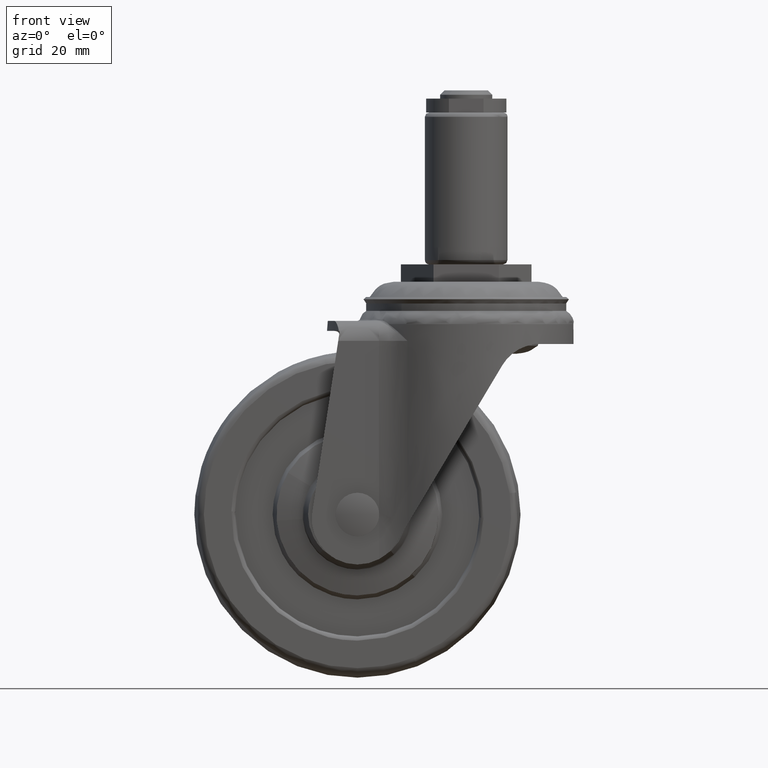
[diagram: clean part render]
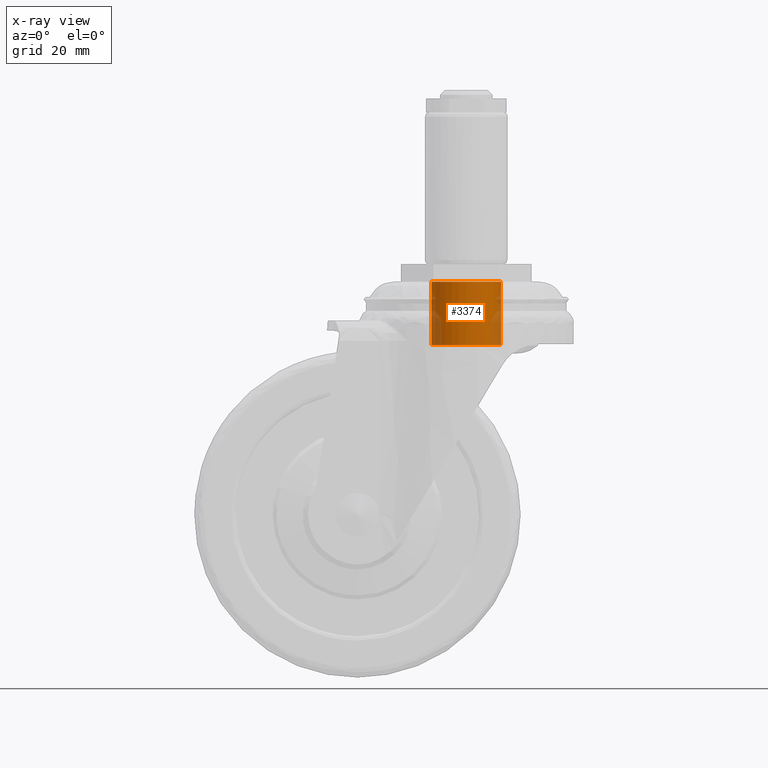
[diagram: x-ray — body ghosted, one internal face saturated and labeled with its STEP entity id]
A machine part, front view, then the same camera in x-ray: the body is ghosted and one INTERNAL B-rep face — a face not visible from any outside direction — is saturated and labeled: STEP entity #3374.
In plain terms, the highlighted face is a freeform B-spline surface patch.
Its self-contained STEP definition (entity closure, byte-faithful):
#3221=CARTESIAN_POINT('',(5.165936307056203,6.108445143523718,-3.636111497701160));
#3222=CARTESIAN_POINT('',(5.340757382698318,5.960598265852118,-3.636111497701160));
#3223=CARTESIAN_POINT('',(5.506836605550030,5.802994968098299,-3.636111497701160));
#3224=CARTESIAN_POINT('',(11.309831573648330,0.296158362548269,-3.636111497701160));
#3225=CARTESIAN_POINT('',(5.802994968098299,-5.506836605550030,-3.636111497701160));
#3226=CARTESIAN_POINT('',(0.296158362548269,-11.309831573648330,-3.636111497701160));
#3227=CARTESIAN_POINT('',(-5.506836605550030,-5.802994968098299,-3.636111497701160));
#3228=CARTESIAN_POINT('',(-11.309831573648330,-0.296158362548269,-3.636111497701160));
#3229=CARTESIAN_POINT('',(-5.802994968098299,5.506836605550030,-3.636111497701160));
#3230=CARTESIAN_POINT('',(5.165936307056203,6.108445143523718,-18.928525806809915));
#3231=CARTESIAN_POINT('',(5.340757382698318,5.960598265852118,-18.928525806809926));
#3232=CARTESIAN_POINT('',(5.506836605550030,5.802994968098299,-18.928525806809919));
#3233=CARTESIAN_POINT('',(11.309831573648330,0.296158362548269,-18.928525806809919));
#3234=CARTESIAN_POINT('',(5.802994968098299,-5.506836605550030,-18.928525806809919));
#3235=CARTESIAN_POINT('',(0.296158362548269,-11.309831573648330,-18.928525806809919));
#3236=CARTESIAN_POINT('',(-5.506836605550030,-5.802994968098299,-18.928525806809919));
#3237=CARTESIAN_POINT('',(-11.309831573648330,-0.296158362548269,-18.928525806809919));
#3238=CARTESIAN_POINT('',(-5.802994968098299,5.506836605550030,-18.928525806809919));
#3246=(BOUNDED_SURFACE()B_SPLINE_SURFACE(2,1,((#3221,#3230),(#3222,#3231),(#3223,#3232),(#3224,#3233),(#3225,#3234),(#3226,#3235),(#3227,#3236),(#3228,#3237),(#3229,#3238)),.UNSPECIFIED.,.F.,.F.,.U.)B_SPLINE_SURFACE_WITH_KNOTS((3,2,2,2,3),(2,2),(0.0,0.530193359837562,13.785027355776601,27.039861351715640,40.294695347654667),(0.0,15.292414309108761),.UNSPECIFIED.)GEOMETRIC_REPRESENTATION_ITEM()RATIONAL_B_SPLINE_SURFACE(((0.977505800795127,0.977505800795127),(0.988284271247462,0.988284271247462),(1.0,1.0),(0.707106781186548,0.707106781186548),(1.0,1.0),(0.707106781186548,0.707106781186548),(1.0,1.0),(0.707106781186548,0.707106781186548),(1.0,1.0)))REPRESENTATION_ITEM('')SURFACE());
#3247=CARTESIAN_POINT('',(5.165936575284565,6.108445360723499,-18.555540091954299));
#3248=VERTEX_POINT('',#3247);
#3249=CARTESIAN_POINT('',(8.0,0.0,-18.555540091953599));
#3250=VERTEX_POINT('',#3249);
#3251=CARTESIAN_POINT('',(5.165936575284565,6.108445360723499,-18.555540091954299));
#3252=CARTESIAN_POINT('',(5.802046199382416,5.571117626189934,-18.555540091954200));
#3253=CARTESIAN_POINT('',(6.592075360672836,4.655799974751827,-18.555540091954189));
#3254=CARTESIAN_POINT('',(7.392632616958438,3.150027760524228,-18.555540091953961));
#3255=CARTESIAN_POINT('',(7.869865701895519,1.737560191491981,-18.555540091953748));
#3256=CARTESIAN_POINT('',(8.000125425795652,0.615413903055428,-18.555540091953699));
#3257=CARTESIAN_POINT('',(8.0,0.0,-18.555540091953599));
#3258=B_SPLINE_CURVE_WITH_KNOTS('',3,(#3251,#3252,#3253,#3254,#3255,#3256,#3257),.UNSPECIFIED.,.F.,.U.,(4,1,1,1,4),(0.000000038262470,2.497835508302702,3.583817222934159,5.104247905861117,6.950466429276188),.UNSPECIFIED.);
#3259=EDGE_CURVE('',#3248,#3250,#3258,.T.);
#3260=ORIENTED_EDGE('',*,*,#3259,.F.);
#3261=CARTESIAN_POINT('',(5.165936574656104,6.108445361254947,-4.0));
#3262=VERTEX_POINT('',#3261);
#3263=CARTESIAN_POINT('',(5.165936574656104,6.108445361254947,-4.0));
#3264=CARTESIAN_POINT('',(5.165936575284565,6.108445360723499,-18.555540091954299));
#3265=QUASI_UNIFORM_CURVE('',1,(#3263,#3264),.UNSPECIFIED.,.F.,.U.);
#3266=EDGE_CURVE('',#3262,#3248,#3265,.T.);
#3267=ORIENTED_EDGE('',*,*,#3266,.F.);
#3268=CARTESIAN_POINT('',(8.0,0.0,-4.0));
#3269=VERTEX_POINT('',#3268);
#3270=CARTESIAN_POINT('',(5.165936574656104,6.108445361254947,-4.0));
#3271=CARTESIAN_POINT('',(5.802030012027547,5.571114248674903,-3.999999999999979));
#3272=CARTESIAN_POINT('',(6.639997205981780,4.600338168210986,-4.000000000000038));
#3273=CARTESIAN_POINT('',(7.354288404865456,3.211463892039963,-3.999999999999982));
#3274=CARTESIAN_POINT('',(7.849216723535178,1.809874486210506,-4.000000000000018));
#3275=CARTESIAN_POINT('',(8.000316856798809,0.760247739238669,-3.999999999999972));
#3276=CARTESIAN_POINT('',(8.0,0.0,-4.0));
#3277=B_SPLINE_CURVE_WITH_KNOTS('',3,(#3270,#3271,#3272,#3273,#3274,#3275,#3276),.UNSPECIFIED.,.F.,.U.,(4,1,1,1,4),(0.000000038263295,2.497835508598858,3.801012100234849,4.669842726386582,6.950466430099228),.UNSPECIFIED.);
#3278=EDGE_CURVE('',#3262,#3269,#3277,.T.);
#3279=ORIENTED_EDGE('',*,*,#3278,.T.);
#3280=CARTESIAN_POINT('',(-0.000001375290993,-7.999999999999882,-4.0));
#3281=VERTEX_POINT('',#3280);
#3282=CARTESIAN_POINT('',(8.0,0.0,-4.0));
#3283=CARTESIAN_POINT('',(8.000243040549018,-0.719970237695694,-3.999999999999995));
#3284=CARTESIAN_POINT('',(7.826511734698189,-1.996120369310360,-4.000000000000009));
#3285=CARTESIAN_POINT('',(7.176860204249508,-3.649890680406295,-4.0));
#3286=CARTESIAN_POINT('',(6.289249935120520,-5.032733548414628,-3.999999999999991));
#3287=CARTESIAN_POINT('',(5.070646576808676,-6.281796616784929,-3.999999999999993));
#3288=CARTESIAN_POINT('',(3.649941358496569,-7.181335073537362,-4.000000000000048));
#3289=CARTESIAN_POINT('',(1.930627721401632,-7.832466139986162,-3.999999999999910));
#3290=CARTESIAN_POINT('',(0.752705149264657,-8.000278103166316,-4.000000000000039));
#3291=CARTESIAN_POINT('',(-0.000001375290993,-7.999999999999882,-4.0));
#3292=B_SPLINE_CURVE_WITH_KNOTS('',3,(#3282,#3283,#3284,#3285,#3286,#3287,#3288,#3289,#3290,#3291),.UNSPECIFIED.,.F.,.U.,(4,1,1,1,1,1,1,4),(0.000000129359908,2.159858494545006,3.828853022309669,5.301508742393242,7.068624005722660,9.032129128956232,10.308418452987549,12.566450238148720),.UNSPECIFIED.);
#3293=EDGE_CURVE('',#3269,#3281,#3292,.T.);
#3294=ORIENTED_EDGE('',*,*,#3293,.T.);
#3295=CARTESIAN_POINT('',(-8.0,0.0,-4.0));
#3296=VERTEX_POINT('',#3295);
#3297=CARTESIAN_POINT('',(-0.000001375290993,-7.999999999999882,-4.0));
#3298=CARTESIAN_POINT('',(-0.850906731180633,-8.000409170389299,-3.999999999999992));
#3299=CARTESIAN_POINT('',(-2.126890643723554,-7.794500383438291,-4.000000000000022));
#3300=CARTESIAN_POINT('',(-3.578949956956149,-7.182235016914313,-3.999999999999988));
#3301=CARTESIAN_POINT('',(-4.566480313506507,-6.598580338835390,-4.000000000000028));
#3302=CARTESIAN_POINT('',(-5.648347814547758,-5.743734506132818,-3.999999999999985));
#3303=CARTESIAN_POINT('',(-6.582394908722734,-4.633700567896283,-4.000000000000002));
#3304=CARTESIAN_POINT('',(-7.285859418018123,-3.373564249296105,-4.000000000000005));
#3305=CARTESIAN_POINT('',(-7.832492876697360,-1.930637136039002,-3.999999999999996));
#3306=CARTESIAN_POINT('',(-8.000266495692173,-0.752705473147793,-4.000000000000003));
#3307=CARTESIAN_POINT('',(-8.0,0.0,-4.0));
#3308=B_SPLINE_CURVE_WITH_KNOTS('',3,(#3297,#3298,#3299,#3300,#3301,#3302,#3303,#3304,#3305,#3306,#3307),.UNSPECIFIED.,.F.,.U.,(4,1,1,1,1,1,1,1,4),(0.000000129838014,2.552557955126160,3.828852550414030,4.712423965979518,5.988735745930430,7.952180313416029,9.032128014486625,10.308417181866609,12.566448687865520),.UNSPECIFIED.);
#3309=EDGE_CURVE('',#3281,#3296,#3308,.T.);
#3310=ORIENTED_EDGE('',*,*,#3309,.T.);
#3311=CARTESIAN_POINT('',(-5.802994646137058,5.506836446026000,-4.0));
#3312=VERTEX_POINT('',#3311);
#3313=CARTESIAN_POINT('',(-8.0,0.0,-4.0));
#3314=CARTESIAN_POINT('',(-8.000061924439986,0.506150372846937,-4.000000000000006));
#3315=CARTESIAN_POINT('',(-7.906598409209151,1.486781149091759,-3.999999999999990));
#3316=CARTESIAN_POINT('',(-7.461035658538473,3.044058269051161,-4.000000000000011));
#3317=CARTESIAN_POINT('',(-6.746237837034503,4.395830901333309,-3.999999999999990));
#3318=CARTESIAN_POINT('',(-6.086075329337763,5.208537863711525,-4.000000000000011));
#3319=CARTESIAN_POINT('',(-5.802994646137058,5.506836446026000,-4.0));
#3320=B_SPLINE_CURVE_WITH_KNOTS('',3,(#3313,#3314,#3315,#3316,#3317,#3318,#3319),.UNSPECIFIED.,.F.,.U.,(4,1,1,1,4),(0.000000031785983,1.518445369961434,2.942007438684915,4.840048794823058,6.073781384445676),.UNSPECIFIED.);
#3321=EDGE_CURVE('',#3296,#3312,#3320,.T.);
#3322=ORIENTED_EDGE('',*,*,#3321,.T.);
#3323=CARTESIAN_POINT('',(-5.802994645237343,5.506836446974052,-18.555540091951659));
#3324=VERTEX_POINT('',#3323);
#3325=CARTESIAN_POINT('',(-5.802994646137058,5.506836446026000,-4.0));
#3326=CARTESIAN_POINT('',(-5.802994645237343,5.506836446974052,-18.555540091951659));
#3327=QUASI_UNIFORM_CURVE('',1,(#3325,#3326),.UNSPECIFIED.,.F.,.U.);
#3328=EDGE_CURVE('',#3312,#3324,#3327,.T.);
#3329=ORIENTED_EDGE('',*,*,#3328,.T.);
#3330=CARTESIAN_POINT('',(-8.0,0.0,-18.555540091953599));
#3331=VERTEX_POINT('',#3330);
#3332=CARTESIAN_POINT('',(-8.0,0.0,-18.555540091953599));
#3333=CARTESIAN_POINT('',(-8.000122498528867,0.601062465263289,-18.555540091953361));
#3334=CARTESIAN_POINT('',(-7.888926428751203,1.581662654171772,-18.555540091953102));
#3335=CARTESIAN_POINT('',(-7.471847708488809,2.946508274787784,-18.555540091952551));
#3336=CARTESIAN_POINT('',(-6.849526446159084,4.232269939264314,-18.555540091951961));
#3337=CARTESIAN_POINT('',(-6.216826013702836,5.070927852092925,-18.555540091952050));
#3338=CARTESIAN_POINT('',(-5.802994645237343,5.506836446974052,-18.555540091951659));
#3339=B_SPLINE_CURVE_WITH_KNOTS('',3,(#3332,#3333,#3334,#3335,#3336,#3337,#3338),.UNSPECIFIED.,.F.,.U.,(4,1,1,1,4),(0.000000031786527,1.803158118881911,2.942007439318360,4.270623298678133,6.073781385752690),.UNSPECIFIED.);
#3340=EDGE_CURVE('',#3331,#3324,#3339,.T.);
#3341=ORIENTED_EDGE('',*,*,#3340,.F.);
#3342=CARTESIAN_POINT('',(-0.000001375290855,-7.999999999999882,-18.555540091953599));
#3343=VERTEX_POINT('',#3342);
#3344=CARTESIAN_POINT('',(-0.000001375290855,-7.999999999999882,-18.555540091953599));
#3345=CARTESIAN_POINT('',(-0.490875381539733,-8.000055180793936,-18.555540091953670));
#3346=CARTESIAN_POINT('',(-1.407141718532558,-7.915373343550143,-18.555540091953539));
#3347=CARTESIAN_POINT('',(-2.928489410787933,-7.504569315492099,-18.555540091953610));
#3348=CARTESIAN_POINT('',(-4.342110544791528,-6.792961798271974,-18.555540091953642));
#3349=CARTESIAN_POINT('',(-5.746402692615592,-5.654870817414990,-18.555540091953599));
#3350=CARTESIAN_POINT('',(-6.817755061085316,-4.316282128824993,-18.555540091953549));
#3351=CARTESIAN_POINT('',(-7.530176462815267,-2.833360872670651,-18.555540091953588));
#3352=CARTESIAN_POINT('',(-7.915383392621604,-1.407144081473919,-18.555540091953599));
#3353=CARTESIAN_POINT('',(-8.000052905074577,-0.490873215657194,-18.555540091953588));
#3354=CARTESIAN_POINT('',(-8.0,0.0,-18.555540091953599));
#3355=B_SPLINE_CURVE_WITH_KNOTS('',3,(#3344,#3345,#3346,#3347,#3348,#3349,#3350,#3351,#3352,#3353,#3354),.UNSPECIFIED.,.F.,.U.,(4,1,1,1,1,1,1,1,4),(0.000000129838131,1.472619406631123,2.748904747986927,4.712423965979832,6.185086420887318,8.148551657590012,9.817545084372764,11.093831509771229,12.566448687865600),.UNSPECIFIED.);
#3356=EDGE_CURVE('',#3343,#3331,#3355,.T.);
#3357=ORIENTED_EDGE('',*,*,#3356,.F.);
#3358=CARTESIAN_POINT('',(8.0,0.0,-18.555540091953599));
#3359=CARTESIAN_POINT('',(8.000063833595824,-0.556318401468198,-18.555540091953560));
#3360=CARTESIAN_POINT('',(7.880096956928697,-1.701678752824642,-18.555540091953649));
#3361=CARTESIAN_POINT('',(7.363709033965235,-3.264840217944118,-18.555540091953581));
#3362=CARTESIAN_POINT('',(6.545005849359004,-4.689573969178714,-18.555540091953588));
#3363=CARTESIAN_POINT('',(5.614303531821736,-5.755175392863954,-18.555540091953610));
#3364=CARTESIAN_POINT('',(4.544057734647477,-6.622525480579830,-18.555540091953610));
#3365=CARTESIAN_POINT('',(3.352210019184647,-7.317255385297772,-18.555540091953620));
#3366=CARTESIAN_POINT('',(1.799818501129699,-7.861940573631253,-18.555540091953571));
#3367=CARTESIAN_POINT('',(0.621783267826260,-8.000143449969732,-18.555540091953620));
#3368=CARTESIAN_POINT('',(-0.000001375290855,-7.999999999999882,-18.555540091953599));
#3369=B_SPLINE_CURVE_WITH_KNOTS('',3,(#3358,#3359,#3360,#3361,#3362,#3363,#3364,#3365,#3366,#3367,#3368),.UNSPECIFIED.,.F.,.U.,(4,1,1,1,1,1,1,1,4),(0.000000129360167,1.668959570392328,3.436144579067847,4.908800747159481,6.577714947442108,7.657650729294666,9.032129128956203,10.701122761478320,12.566450238148640),.UNSPECIFIED.);
#3370=EDGE_CURVE('',#3250,#3343,#3369,.T.);
#3371=ORIENTED_EDGE('',*,*,#3370,.F.);
#3372=EDGE_LOOP('',(#3260,#3267,#3279,#3294,#3310,#3322,#3329,#3341,#3357,#3371));
#3373=FACE_OUTER_BOUND('',#3372,.T.);
#3374=ADVANCED_FACE('',(#3373),#3246,.T.);